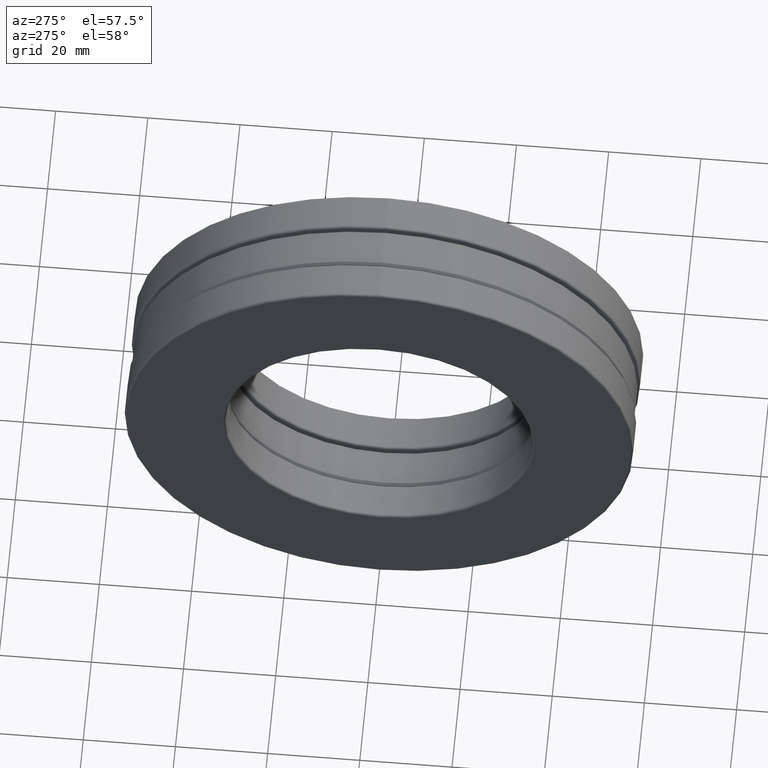
[diagram: clean part render]
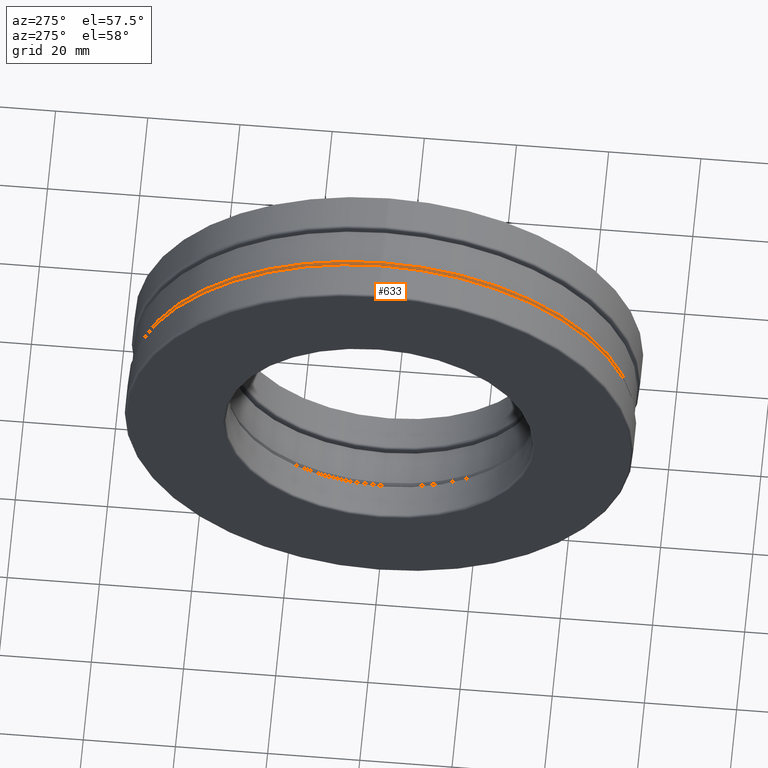
[diagram: same view with one face highlighted and labeled with its STEP entity id]
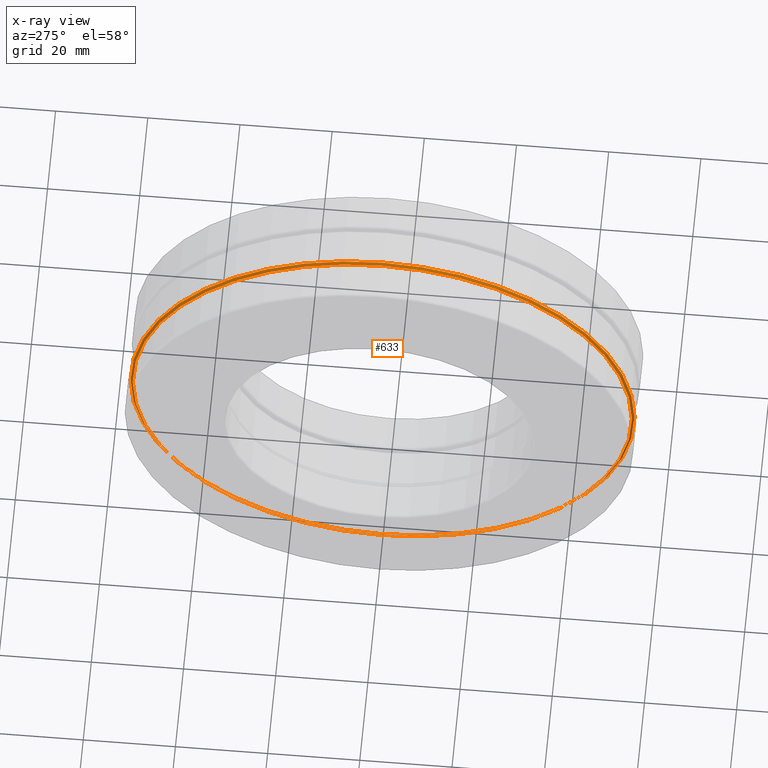
[diagram: x-ray of the same camera — body ghosted, the highlighted face saturated]
A machine part, auxiliary view. The second image highlights one B-rep face of the part: STEP entity #633.
The next image is the same camera in x-ray: the body ghosted, the highlighted face saturated — about 10% of this face is hidden behind the body in this view.
In plain terms, the highlighted conical surface has half-angle 45 deg.
Its self-contained STEP definition (entity closure, byte-faithful):
#12 = EDGE_CURVE ( 'NONE', #273, #273, #1403, .T. ) ;
#32 = AXIS2_PLACEMENT_3D ( 'NONE', #666, #338, #561 ) ;
#74 = ORIENTED_EDGE ( 'NONE', *, *, #247, .T. ) ;
#115 = CARTESIAN_POINT ( 'NONE',  ( -0.1475000000000001000, 0.0000000000000000000, 0.0000000000000000000 ) ) ;
#164 = EDGE_LOOP ( 'NONE', ( #74 ) ) ;
#196 = VERTEX_POINT ( 'NONE', #675 ) ;
#247 = EDGE_CURVE ( 'NONE', #196, #196, #1176, .T. ) ;
#273 = VERTEX_POINT ( 'NONE', #1431 ) ;
#338 = DIRECTION ( 'NONE',  ( -1.000000000000000000, -0.0000000000000000000, -0.0000000000000000000 ) ) ;
#341 = DIRECTION ( 'NONE',  ( 0.0000000000000000000, 0.0000000000000000000, 1.000000000000000000 ) ) ;
#482 = EDGE_LOOP ( 'NONE', ( #1108 ) ) ;
#561 = DIRECTION ( 'NONE',  ( 0.0000000000000000000, 0.0000000000000000000, 1.000000000000000000 ) ) ;
#624 = AXIS2_PLACEMENT_3D ( 'NONE', #115, #892, #341 ) ;
#633 = ADVANCED_FACE ( 'NONE', ( #1107, #949 ), #644, .T. ) ;
#644 = CONICAL_SURFACE ( 'NONE', #1203, 2.131874999999999500, 0.7853981633974500600 ) ;
#666 = CARTESIAN_POINT ( 'NONE',  ( -0.1675000000000000900, 0.0000000000000000000, 0.0000000000000000000 ) ) ;
#675 = CARTESIAN_POINT ( 'NONE',  ( -0.1475000000000001000, 0.0000000000000000000, 2.151874999999999500 ) ) ;
#892 = DIRECTION ( 'NONE',  ( -1.000000000000000000, -0.0000000000000000000, -0.0000000000000000000 ) ) ;
#949 = FACE_BOUND ( 'NONE', #482, .T. ) ;
#976 = DIRECTION ( 'NONE',  ( 0.0000000000000000000, 0.0000000000000000000, -1.000000000000000000 ) ) ;
#1107 = FACE_OUTER_BOUND ( 'NONE', #164, .T. ) ;
#1108 = ORIENTED_EDGE ( 'NONE', *, *, #12, .F. ) ;
#1176 = CIRCLE ( 'NONE', #624, 2.151874999999999500 ) ;
#1203 = AXIS2_PLACEMENT_3D ( 'NONE', #1309, #1430, #976 ) ;
#1309 = CARTESIAN_POINT ( 'NONE',  ( -0.1675000000000000900, 0.0000000000000000000, 0.0000000000000000000 ) ) ;
#1403 = CIRCLE ( 'NONE', #32, 2.131874999999999500 ) ;
#1430 = DIRECTION ( 'NONE',  ( 1.000000000000000000, 0.0000000000000000000, 0.0000000000000000000 ) ) ;
#1431 = CARTESIAN_POINT ( 'NONE',  ( -0.1675000000000000900, 0.0000000000000000000, 2.131874999999999500 ) ) ;